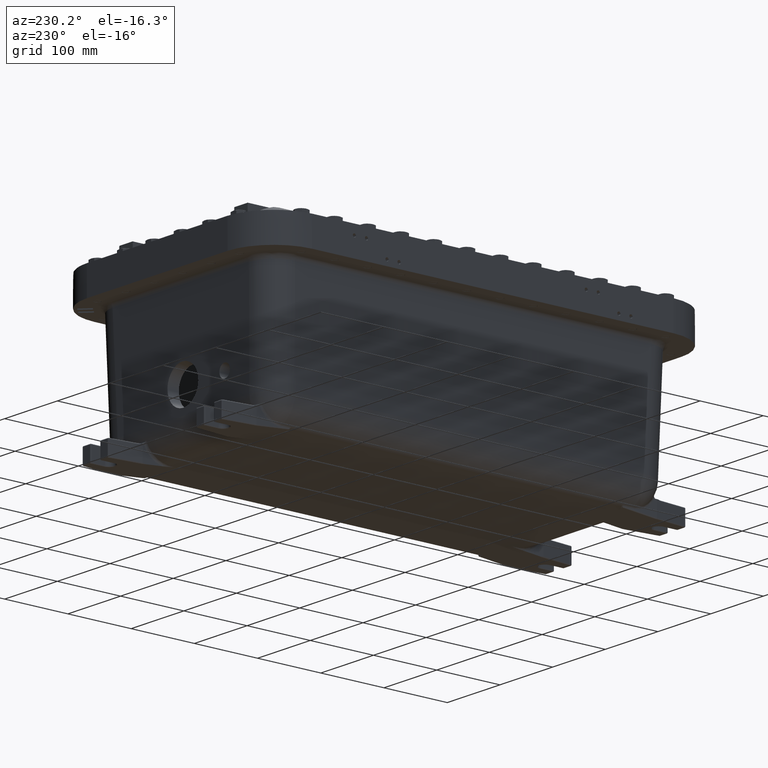
[diagram: clean part render]
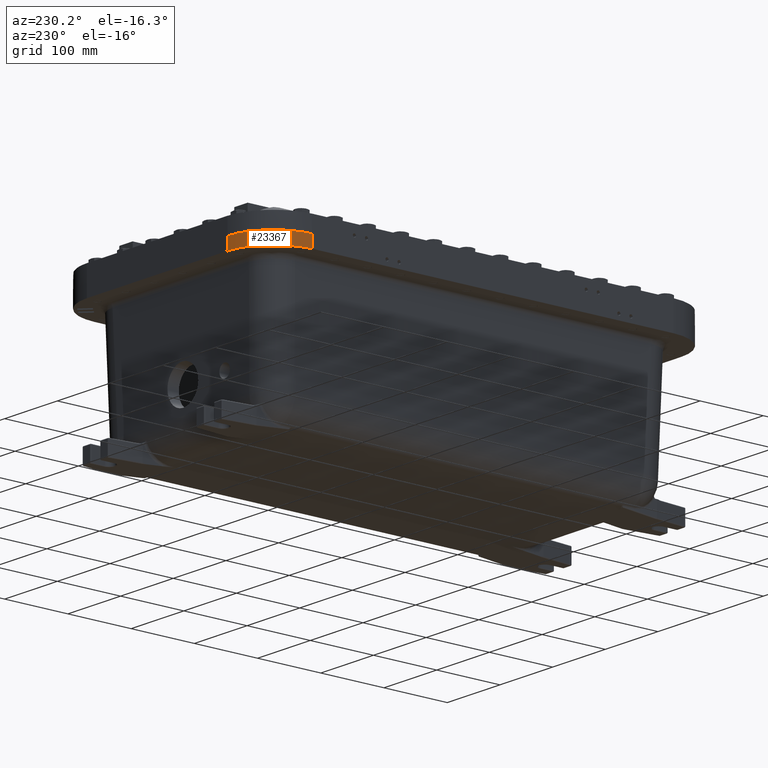
[diagram: same view with one face highlighted and labeled with its STEP entity id]
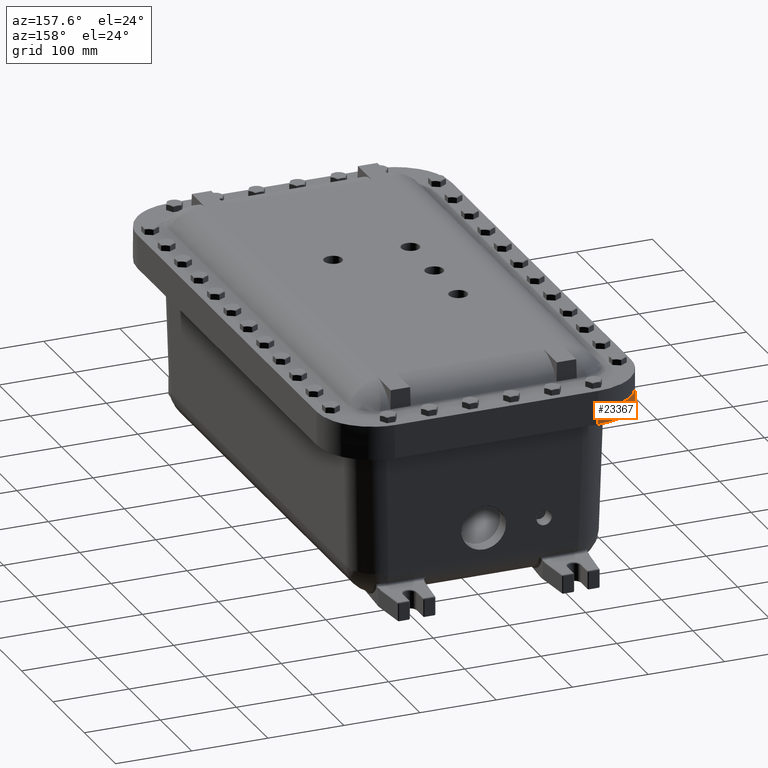
[diagram: same view with one face highlighted and labeled with its STEP entity id]
A machine part, auxiliary view. The second image highlights one B-rep face of the part: STEP entity #23367.
A second angle (auxiliary view) of the same face is appended — the face is thin or edge-on in the first view.
In plain terms, the highlighted cylindrical surface (partial cylindrical patch) has radius 73.025 mm, axis along (0, 0, 1).
Its self-contained STEP definition (entity closure, byte-faithful):
#622 = VERTEX_POINT ( 'NONE', #18203 ) ;
#1854 = EDGE_CURVE ( 'NONE', #17825, #11556, #2074, .T. ) ;
#1861 = DIRECTION ( 'NONE',  ( 0.0000000000000000000, -0.0000000000000000000, -1.000000000000000000 ) ) ;
#1961 = CARTESIAN_POINT ( 'NONE',  ( 14.12500000000000500, 5.250000000000000900, -0.7500000000000004400 ) ) ;
#2074 = CIRCLE ( 'NONE', #8177, 2.875000000000000400 ) ;
#3966 = DIRECTION ( 'NONE',  ( -0.0000000000000000000, -0.0000000000000000000, 1.000000000000000000 ) ) ;
#4500 = CIRCLE ( 'NONE', #6663, 2.875000000000000400 ) ;
#5844 = FACE_OUTER_BOUND ( 'NONE', #20112, .T. ) ;
#6147 = VECTOR ( 'NONE', #3966, 39.37007874015748100 ) ;
#6443 = CARTESIAN_POINT ( 'NONE',  ( 14.12500000000000500, 5.249999999999980500, -9.191273486215493400 ) ) ;
#6663 = AXIS2_PLACEMENT_3D ( 'NONE', #15332, #1861, #17599 ) ;
#6776 = EDGE_CURVE ( 'NONE', #622, #11556, #18131, .T. ) ;
#6862 = EDGE_CURVE ( 'NONE', #16356, #17825, #22715, .T. ) ;
#7046 = CARTESIAN_POINT ( 'NONE',  ( 11.25000000000000500, 5.250000000000000900, -9.191273486215493400 ) ) ;
#7144 = DIRECTION ( 'NONE',  ( 1.000000000000000000, 0.0000000000000000000, 0.0000000000000000000 ) ) ;
#7772 = ORIENTED_EDGE ( 'NONE', *, *, #6862, .F. ) ;
#8177 = AXIS2_PLACEMENT_3D ( 'NONE', #24590, #11109, #26866 ) ;
#10455 = ORIENTED_EDGE ( 'NONE', *, *, #1854, .F. ) ;
#11109 = DIRECTION ( 'NONE',  ( -0.0000000000000000000, -0.0000000000000000000, 1.000000000000000000 ) ) ;
#11159 = CYLINDRICAL_SURFACE ( 'NONE', #18763, 2.875000000000000400 ) ;
#11556 = VERTEX_POINT ( 'NONE', #19502 ) ;
#14137 = CARTESIAN_POINT ( 'NONE',  ( 14.12500000000000500, 5.249999999999980500, 0.0000000000000000000 ) ) ;
#14298 = ORIENTED_EDGE ( 'NONE', *, *, #21252, .F. ) ;
#15332 = CARTESIAN_POINT ( 'NONE',  ( 11.25000000000000500, 5.250000000000000900, -0.7500000000000004400 ) ) ;
#16356 = VERTEX_POINT ( 'NONE', #1961 ) ;
#17599 = DIRECTION ( 'NONE',  ( 1.000000000000000000, -7.601663982370122800E-016, 0.0000000000000000000 ) ) ;
#17825 = VERTEX_POINT ( 'NONE', #14137 ) ;
#18131 = LINE ( 'NONE', #21705, #6147 ) ;
#18203 = CARTESIAN_POINT ( 'NONE',  ( 11.24999999999998600, 8.125000000000000000, -0.7500000000000004400 ) ) ;
#18763 = AXIS2_PLACEMENT_3D ( 'NONE', #7046, #22789, #7144 ) ;
#19502 = CARTESIAN_POINT ( 'NONE',  ( 11.24999999999998600, 8.125000000000001800, 0.0000000000000000000 ) ) ;
#20112 = EDGE_LOOP ( 'NONE', ( #10455, #7772, #14298, #22529 ) ) ;
#21252 = EDGE_CURVE ( 'NONE', #622, #16356, #4500, .T. ) ;
#21705 = CARTESIAN_POINT ( 'NONE',  ( 11.24999999999998600, 8.125000000000000000, -9.191273486215493400 ) ) ;
#22529 = ORIENTED_EDGE ( 'NONE', *, *, #6776, .T. ) ;
#22715 = LINE ( 'NONE', #6443, #28714 ) ;
#22789 = DIRECTION ( 'NONE',  ( -0.0000000000000000000, -0.0000000000000000000, 1.000000000000000000 ) ) ;
#23367 = ADVANCED_FACE ( 'NONE', ( #5844 ), #11159, .T. ) ;
#24469 = DIRECTION ( 'NONE',  ( -0.0000000000000000000, -0.0000000000000000000, 1.000000000000000000 ) ) ;
#24590 = CARTESIAN_POINT ( 'NONE',  ( 11.25000000000000500, 5.250000000000000900, 0.0000000000000000000 ) ) ;
#26866 = DIRECTION ( 'NONE',  ( -1.000000000000000000, 7.601663982370122800E-016, 0.0000000000000000000 ) ) ;
#28714 = VECTOR ( 'NONE', #24469, 39.37007874015748100 ) ;